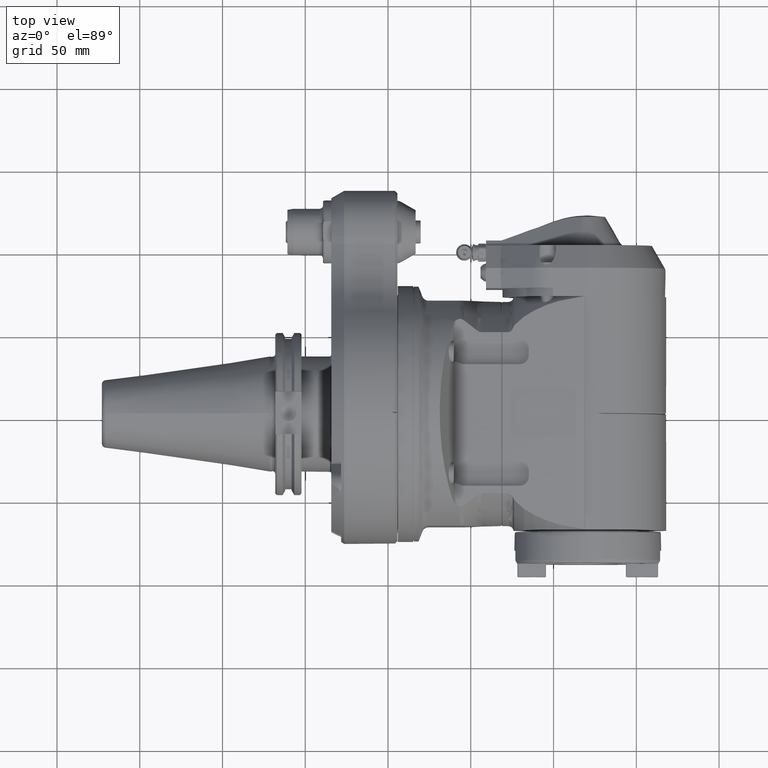
[diagram: clean part render]
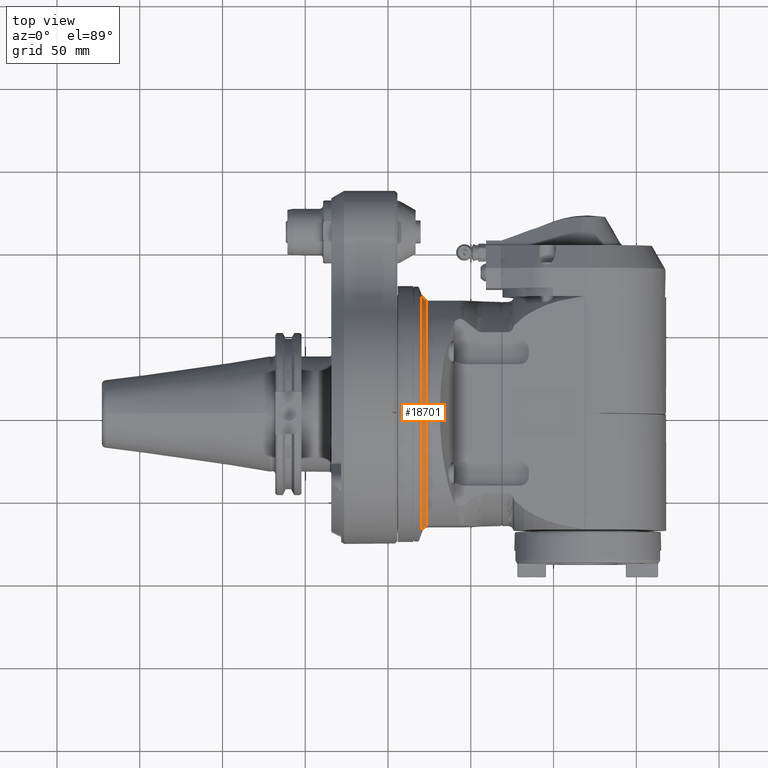
[diagram: same view with one face highlighted and labeled with its STEP entity id]
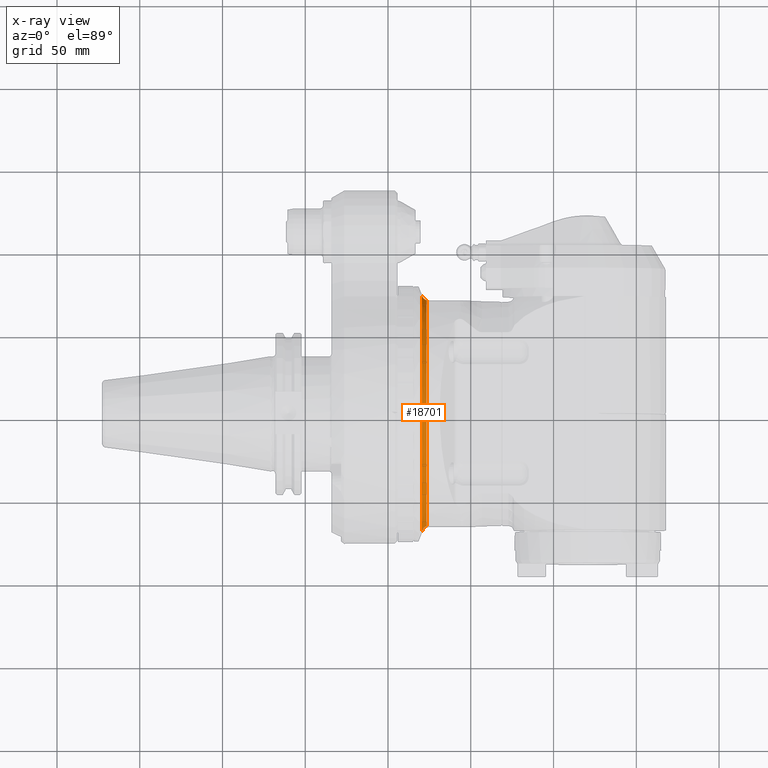
[diagram: x-ray of the same camera — body ghosted, the highlighted face saturated]
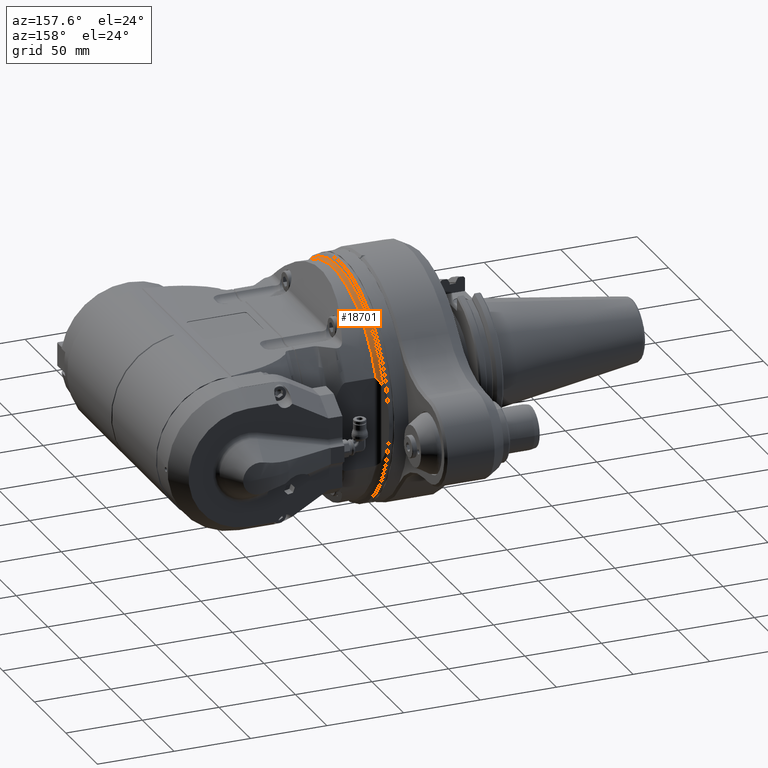
[diagram: same view with one face highlighted and labeled with its STEP entity id]
A machine part, top view. The second image highlights one B-rep face of the part: STEP entity #18701.
The next image is the same camera in x-ray: the body ghosted, the highlighted face saturated — about 0% of this face is hidden behind the body in this view.
A second angle (auxiliary view) of the same face is appended — the face is thin or edge-on in the first view.
In plain terms, the highlighted toroidal blend (fillet) surface has major radius 78 mm and minor (blend) radius 4 mm.
Its self-contained STEP definition (entity closure, byte-faithful):
#91=TOROIDAL_SURFACE('',#20161,78.,4.);
#696=B_SPLINE_CURVE_WITH_KNOTS('',3,(#29859,#29860,#29861,#29862,#29863,
#29864,#29865,#29866),.UNSPECIFIED.,.F.,.F.,(4,2,2,4),(9.32887060330587,
9.49150661975827,9.67841821268533,9.76974111553499),.UNSPECIFIED.);
#724=B_SPLINE_CURVE_WITH_KNOTS('',3,(#30305,#30306,#30307,#30308,#30309,
#30310,#30311,#30312),.UNSPECIFIED.,.F.,.F.,(4,2,2,4),(7.74687028507058,
7.98106830494841,8.24484475115428,8.43829041282563),.UNSPECIFIED.);
#725=B_SPLINE_CURVE_WITH_KNOTS('',3,(#30315,#30316,#30317,#30318),
 .UNSPECIFIED.,.F.,.F.,(4,4),(4.9870387393492,5.11044988761005),
 .UNSPECIFIED.);
#728=B_SPLINE_CURVE_WITH_KNOTS('',3,(#30346,#30347,#30348,#30349),
 .UNSPECIFIED.,.F.,.F.,(4,4),(-3.77038099472869,-3.64696987946702),
 .UNSPECIFIED.);
#1864=FACE_OUTER_BOUND('',#2961,.T.);
#2961=EDGE_LOOP('',(#14287,#14288,#14289,#14290,#14291,#14292));
#6956=CIRCLE('',#20071,74.);
#6984=CIRCLE('',#20159,75.17157287525);
#8155=VERTEX_POINT('',#29856);
#8156=VERTEX_POINT('',#29858);
#8159=VERTEX_POINT('',#29889);
#8225=VERTEX_POINT('',#30294);
#8227=VERTEX_POINT('',#30314);
#8235=VERTEX_POINT('',#30344);
#10379=EDGE_CURVE('',#8156,#8155,#696,.T.);
#10383=EDGE_CURVE('',#8159,#8156,#6956,.T.);
#10493=EDGE_CURVE('',#8225,#8159,#724,.T.);
#10494=EDGE_CURVE('',#8225,#8227,#725,.T.);
#10505=EDGE_CURVE('',#8155,#8235,#728,.T.);
#10507=EDGE_CURVE('',#8235,#8227,#6984,.T.);
#14287=ORIENTED_EDGE('',*,*,#10507,.T.);
#14288=ORIENTED_EDGE('',*,*,#10494,.F.);
#14289=ORIENTED_EDGE('',*,*,#10493,.T.);
#14290=ORIENTED_EDGE('',*,*,#10383,.T.);
#14291=ORIENTED_EDGE('',*,*,#10379,.T.);
#14292=ORIENTED_EDGE('',*,*,#10505,.T.);
#18701=ADVANCED_FACE('',(#1864),#91,.F.);
#20071=AXIS2_PLACEMENT_3D('',#29890,#23046,#23047);
#20159=AXIS2_PLACEMENT_3D('',#30352,#23262,#23263);
#20161=AXIS2_PLACEMENT_3D('',#30354,#23266,#23267);
#23046=DIRECTION('center_axis',(-1.,0.,0.));
#23047=DIRECTION('ref_axis',(0.,-0.528115842389186,0.849172336465078));
#23262=DIRECTION('center_axis',(1.,0.,0.));
#23263=DIRECTION('ref_axis',(0.,0.947417584812167,0.319999874982289));
#23266=DIRECTION('center_axis',(-1.,0.,0.));
#23267=DIRECTION('ref_axis',(0.,1.,0.));
#29856=CARTESIAN_POINT('',(-6.95796147091597,70.6319721801493,25.1411074379641));
#29858=CARTESIAN_POINT('',(-4.343145750508,68.16707433772,28.79670078734));
#29859=CARTESIAN_POINT('Ctrl Pts',(-4.34314575050919,68.1670743377204,28.7967007873419));
#29860=CARTESIAN_POINT('Ctrl Pts',(-4.82310001508465,68.3103216014978,28.457608231195));
#29861=CARTESIAN_POINT('Ctrl Pts',(-5.26443993524709,68.540470399437,28.1290282657255));
#29862=CARTESIAN_POINT('Ctrl Pts',(-6.0861996930378,69.1762238051591,27.3095816897845));
#29863=CARTESIAN_POINT('Ctrl Pts',(-6.43398358387534,69.5927828537826,26.8151209736538));
#29864=CARTESIAN_POINT('Ctrl Pts',(-6.80576942423428,70.252373179758,25.815258193745));
#29865=CARTESIAN_POINT('Ctrl Pts',(-6.89277646803313,70.4528759883515,25.4763410561421));
#29866=CARTESIAN_POINT('Ctrl Pts',(-6.95795800490174,70.6319679882295,25.1411045246198));
#29889=CARTESIAN_POINT('',(-4.343145750508,-68.16707433772,28.79670078734));
#29890=CARTESIAN_POINT('Origin',(-4.343145750508,0.,0.));
#30294=CARTESIAN_POINT('',(-6.95796141631167,-70.6319720382142,25.1411076899472));
#30305=CARTESIAN_POINT('Ctrl Pts',(-6.95795795517243,-70.6319678515945,
25.141104780382));
#30306=CARTESIAN_POINT('Ctrl Pts',(-6.81315707847232,-70.2341147645861,
25.8858330875747));
#30307=CARTESIAN_POINT('Ctrl Pts',(-6.60379128564977,-69.8627004179946,
26.4148577888465));
#30308=CARTESIAN_POINT('Ctrl Pts',(-6.08307953438735,-69.1919057263993,
27.3093762815531));
#30309=CARTESIAN_POINT('Ctrl Pts',(-5.73556122403844,-68.868619285138,27.6908769247695));
#30310=CARTESIAN_POINT('Ctrl Pts',(-5.01750962660975,-68.4192055733218,
28.3116210927777));
#30311=CARTESIAN_POINT('Ctrl Pts',(-4.68836143207717,-68.2701074920183,
28.5528024067552));
#30312=CARTESIAN_POINT('Ctrl Pts',(-4.34314575050837,-68.1670743377209,
28.7967007873409));
#30314=CARTESIAN_POINT('',(-7.17157709924486,-71.218887856326,24.054849787454));
#30315=CARTESIAN_POINT('Ctrl Pts',(-6.95796388753692,-70.6319841496604,
25.1410742740907));
#30316=CARTESIAN_POINT('Ctrl Pts',(-7.02956452090031,-70.8287052730449,
24.772845937417));
#30317=CARTESIAN_POINT('Ctrl Pts',(-7.1006498303243,-71.0240105555423,24.4101760556955));
#30318=CARTESIAN_POINT('Ctrl Pts',(-7.17157287525419,-71.2188700200061,
24.0548939222993));
#30344=CARTESIAN_POINT('',(-7.17157709409336,71.218887834968,24.0548498398194));
#30346=CARTESIAN_POINT('Ctrl Pts',(-6.95796394497292,70.6319843074582,25.1410739787261));
#30347=CARTESIAN_POINT('Ctrl Pts',(-7.02956455892717,70.8287053775166,24.7728457435058));
#30348=CARTESIAN_POINT('Ctrl Pts',(-7.10064984928852,71.0240106076397,24.4101759607144));
#30349=CARTESIAN_POINT('Ctrl Pts',(-7.17157287525419,71.2188700199998,24.054893922318));
#30352=CARTESIAN_POINT('Origin',(-7.171572875254,0.,0.));
#30354=CARTESIAN_POINT('Origin',(-4.343145750508,0.,0.));